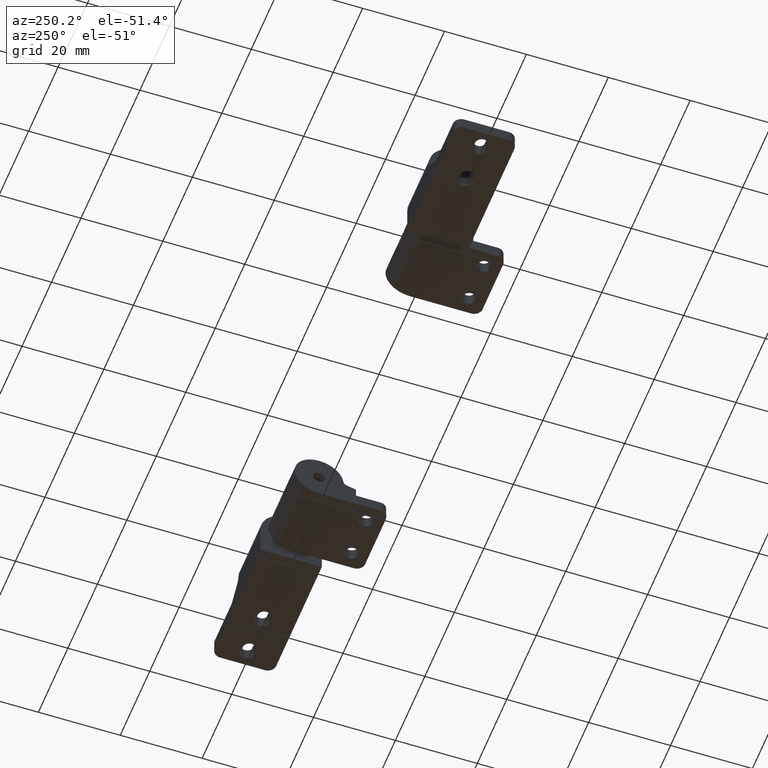
[diagram: clean part render]
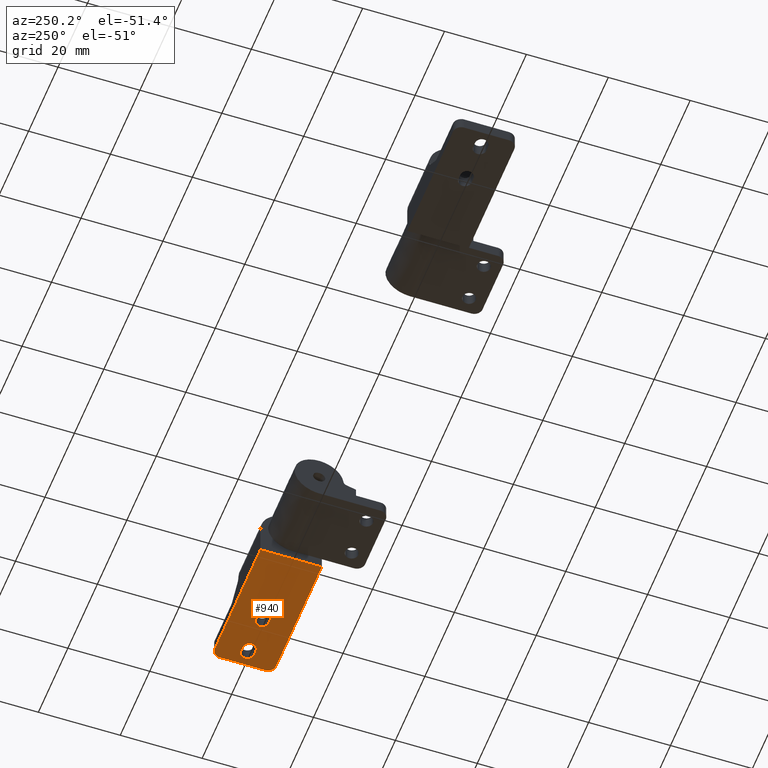
[diagram: same view with one face highlighted and labeled with its STEP entity id]
A machine part, auxiliary view. The second image highlights one B-rep face of the part: STEP entity #940.
In plain terms, the highlighted face is a freeform B-spline surface patch.
Its self-contained STEP definition (entity closure, byte-faithful):
#280=CARTESIAN_POINT('',(132.617673858945010,5.500000000000000,-7.500000000000000));
#281=VERTEX_POINT('',#280);
#287=CARTESIAN_POINT('',(130.617673858945010,7.500000000000000,-7.500000000000000));
#288=VERTEX_POINT('',#287);
#289=CARTESIAN_POINT('',(130.617673858945010,7.500000000000000,-7.500000000000000));
#290=CARTESIAN_POINT('',(132.617673858945010,7.500000000000000,-7.500000000000000));
#291=CARTESIAN_POINT('',(132.617673858945010,5.500000000000000,-7.500000000000000));
#299=(BOUNDED_CURVE()B_SPLINE_CURVE(2,(#289,#290,#291),.UNSPECIFIED.,.F.,.U.)CURVE()GEOMETRIC_REPRESENTATION_ITEM()QUASI_UNIFORM_CURVE()RATIONAL_B_SPLINE_CURVE((1.0,0.707106781186548,1.0))REPRESENTATION_ITEM(''));
#300=EDGE_CURVE('',#288,#281,#299,.T.);
#324=CARTESIAN_POINT('',(132.617673858945010,-5.500000000000000,-7.500000000000000));
#325=VERTEX_POINT('',#324);
#326=CARTESIAN_POINT('',(130.617673858945010,-7.500000000000000,-7.500000000000000));
#327=VERTEX_POINT('',#326);
#328=CARTESIAN_POINT('',(132.617673858945010,-5.500000000000000,-7.500000000000000));
#329=CARTESIAN_POINT('',(132.617673858945010,-7.500000000000000,-7.500000000000000));
#330=CARTESIAN_POINT('',(130.617673858945010,-7.500000000000000,-7.500000000000000));
#338=(BOUNDED_CURVE()B_SPLINE_CURVE(2,(#328,#329,#330),.UNSPECIFIED.,.F.,.U.)CURVE()GEOMETRIC_REPRESENTATION_ITEM()QUASI_UNIFORM_CURVE()RATIONAL_B_SPLINE_CURVE((1.0,0.707106781186548,1.0))REPRESENTATION_ITEM(''));
#339=EDGE_CURVE('',#325,#327,#338,.T.);
#389=CARTESIAN_POINT('',(127.967673858945010,1.600000000000025,-7.500000000000000));
#390=VERTEX_POINT('',#389);
#391=CARTESIAN_POINT('',(127.967673858945010,-1.600000000000025,-7.500000000000000));
#392=VERTEX_POINT('',#391);
#393=CARTESIAN_POINT('',(127.967673858945010,1.600000000000025,-7.500000000000000));
#394=CARTESIAN_POINT('',(127.784475658077600,1.600077991856419,-7.499999999999999));
#395=CARTESIAN_POINT('',(127.365570295843100,1.527493797822270,-7.500000000000010));
#396=CARTESIAN_POINT('',(126.821497044619800,1.183208847150140,-7.499999999999981));
#397=CARTESIAN_POINT('',(126.495480572986910,0.694672137454331,-7.500000000000022));
#398=CARTESIAN_POINT('',(126.362023847115690,0.211658562971916,-7.499999999999978));
#399=CARTESIAN_POINT('',(126.361691202435200,-0.317587870474389,-7.499999999999994));
#400=CARTESIAN_POINT('',(126.583586342500600,-0.893184073160623,-7.500000000000004));
#401=CARTESIAN_POINT('',(127.131086366108210,-1.440723457557452,-7.500000000000002));
#402=CARTESIAN_POINT('',(127.653282479373100,-1.601005780213658,-7.499999999999991));
#403=CARTESIAN_POINT('',(127.967673858945010,-1.600000000000025,-7.500000000000000));
#404=B_SPLINE_CURVE_WITH_KNOTS('',3,(#393,#394,#395,#396,#397,#398,#399,#400,#401,#402,#403),.UNSPECIFIED.,.F.,.U.,(4,1,1,1,1,1,1,1,4),(0.000003890634062,0.549652406642544,1.256775672466239,1.885308163887964,2.278115395318528,2.748929619512599,3.456009322865310,4.084570866846161,5.027052446836393),.UNSPECIFIED.);
#405=EDGE_CURVE('',#390,#392,#404,.T.);
#443=CARTESIAN_POINT('',(129.267673858945610,-1.600000000000025,-7.500000000000000));
#444=VERTEX_POINT('',#443);
#445=CARTESIAN_POINT('',(129.267673858945610,-1.600000000000025,-7.500000000000000));
#446=CARTESIAN_POINT('',(127.967673858945010,-1.600000000000025,-7.500000000000000));
#447=QUASI_UNIFORM_CURVE('',1,(#445,#446),.UNSPECIFIED.,.F.,.U.);
#448=EDGE_CURVE('',#444,#392,#447,.T.);
#484=CARTESIAN_POINT('',(129.267673858945610,1.600000000000025,-7.500000000000000));
#485=VERTEX_POINT('',#484);
#486=CARTESIAN_POINT('',(129.267673858945610,-1.600000000000025,-7.500000000000000));
#487=CARTESIAN_POINT('',(129.450864954884990,-1.600082146609274,-7.500000000000004));
#488=CARTESIAN_POINT('',(129.869783676727000,-1.527491502836834,-7.499999999999984));
#489=CARTESIAN_POINT('',(130.413844978621200,-1.183209039894628,-7.500000000000019));
#490=CARTESIAN_POINT('',(130.739856509914090,-0.694672250002150,-7.499999999999988));
#491=CARTESIAN_POINT('',(130.887555397478990,-0.160752016279495,-7.499999999999999));
#492=CARTESIAN_POINT('',(130.861420322958710,0.372195184289549,-7.500000000000055));
#493=CARTESIAN_POINT('',(130.613771490067510,0.930829807613727,-7.499999999999903));
#494=CARTESIAN_POINT('',(130.104380727357690,1.440824426951611,-7.500000000000091));
#495=CARTESIAN_POINT('',(129.582029714953390,1.600972745320983,-7.499999999999956));
#496=CARTESIAN_POINT('',(129.267673858945610,1.600000000000025,-7.500000000000000));
#497=B_SPLINE_CURVE_WITH_KNOTS('',3,(#486,#487,#488,#489,#490,#491,#492,#493,#494,#495,#496),.UNSPECIFIED.,.F.,.U.,(4,1,1,1,1,1,1,1,4),(0.000003890671533,0.549652406674729,1.256775672490798,1.885308163907280,2.278115395334981,2.906154991427525,3.456009322872747,4.084570866849643,5.027052446836337),.UNSPECIFIED.);
#498=EDGE_CURVE('',#444,#485,#497,.T.);
#531=CARTESIAN_POINT('',(127.967673858945010,1.600000000000025,-7.500000000000000));
#532=CARTESIAN_POINT('',(129.267673858945610,1.600000000000025,-7.500000000000000));
#533=QUASI_UNIFORM_CURVE('',1,(#531,#532),.UNSPECIFIED.,.F.,.U.);
#534=EDGE_CURVE('',#390,#485,#533,.T.);
#564=CARTESIAN_POINT('',(117.967673858945010,1.600000000000025,-7.500000000000000));
#565=VERTEX_POINT('',#564);
#566=CARTESIAN_POINT('',(117.967673858945010,-1.600000000000025,-7.500000000000000));
#567=VERTEX_POINT('',#566);
#568=CARTESIAN_POINT('',(117.967673858945010,1.600000000000025,-7.500000000000000));
#569=CARTESIAN_POINT('',(117.732028437292800,1.600307873718251,-7.500000000000006));
#570=CARTESIAN_POINT('',(117.260963766258300,1.494108542944648,-7.499999999999992));
#571=CARTESIAN_POINT('',(116.753441302632400,1.098086594759537,-7.500000000000010));
#572=CARTESIAN_POINT('',(116.454287557400600,0.598408634959981,-7.499999999999993));
#573=CARTESIAN_POINT('',(116.325969834893700,0.028165944128257,-7.499999999999996));
#574=CARTESIAN_POINT('',(116.436038557035400,-0.606043952855667,-7.500000000000013));
#575=CARTESIAN_POINT('',(116.806745576512700,-1.160912941062467,-7.499999999999989));
#576=CARTESIAN_POINT('',(117.339564152555600,-1.516616475847647,-7.499999999999992));
#577=CARTESIAN_POINT('',(117.758257639241610,-1.600209133473154,-7.500000000000002));
#578=CARTESIAN_POINT('',(117.967673858945010,-1.600000000000025,-7.500000000000000));
#579=B_SPLINE_CURVE_WITH_KNOTS('',3,(#568,#569,#570,#571,#572,#573,#574,#575,#576,#577,#578),.UNSPECIFIED.,.F.,.U.,(4,1,1,1,1,1,1,1,4),(0.000003890621739,0.706909915165301,1.413893309571439,1.885308163881298,2.435093937672693,3.141739324821825,3.770290094890568,4.398840864995382,5.027052446836475),.UNSPECIFIED.);
#580=EDGE_CURVE('',#565,#567,#579,.T.);
#618=CARTESIAN_POINT('',(119.267673858945600,-1.600000000000025,-7.500000000000000));
#619=VERTEX_POINT('',#618);
#620=CARTESIAN_POINT('',(119.267673858945600,-1.600000000000025,-7.500000000000000));
#621=CARTESIAN_POINT('',(117.967673858945010,-1.600000000000025,-7.500000000000000));
#622=QUASI_UNIFORM_CURVE('',1,(#620,#621),.UNSPECIFIED.,.F.,.U.);
#623=EDGE_CURVE('',#619,#567,#622,.T.);
#659=CARTESIAN_POINT('',(119.267673858945600,1.600000000000025,-7.500000000000000));
#660=VERTEX_POINT('',#659);
#661=CARTESIAN_POINT('',(119.267673858945600,-1.600000000000025,-7.500000000000000));
#662=CARTESIAN_POINT('',(119.450850861083400,-1.600085630701024,-7.500000000000000));
#663=CARTESIAN_POINT('',(119.869844716527000,-1.527488986799242,-7.500000000000006));
#664=CARTESIAN_POINT('',(120.368364887106790,-1.211899766181085,-7.499999999999985));
#665=CARTESIAN_POINT('',(120.683522345279000,-0.786378247261924,-7.500000000000022));
#666=CARTESIAN_POINT('',(120.864025308905200,-0.318848237588971,-7.499999999999987));
#667=CARTESIAN_POINT('',(120.887545322501890,0.160730308351093,-7.500000000000036));
#668=CARTESIAN_POINT('',(120.739874927173100,0.694695143065725,-7.499999999999982));
#669=CARTESIAN_POINT('',(120.428627964727100,1.160919484235528,-7.500000000000031));
#670=CARTESIAN_POINT('',(119.895783438857290,1.516615108178511,-7.499999999999980));
#671=CARTESIAN_POINT('',(119.477090476791400,1.600209001952318,-7.500000000000011));
#672=CARTESIAN_POINT('',(119.267673858945600,1.600000000000025,-7.500000000000000));
#673=B_SPLINE_CURVE_WITH_KNOTS('',3,(#661,#662,#663,#664,#665,#666,#667,#668,#669,#670,#671,#672),.UNSPECIFIED.,.F.,.U.,(4,1,1,1,1,1,1,1,1,4),(0.000003890643002,0.549652406650383,1.256775672471314,1.728124888833075,2.120935561168304,2.748929619515921,3.141739324826773,3.770290094893435,4.398840864996456,5.027052446836434),.UNSPECIFIED.);
#674=EDGE_CURVE('',#619,#660,#673,.T.);
#707=CARTESIAN_POINT('',(117.967673858945010,1.600000000000025,-7.500000000000000));
#708=CARTESIAN_POINT('',(119.267673858945600,1.600000000000025,-7.500000000000000));
#709=QUASI_UNIFORM_CURVE('',1,(#707,#708),.UNSPECIFIED.,.F.,.U.);
#710=EDGE_CURVE('',#565,#660,#709,.T.);
#819=CARTESIAN_POINT('',(132.617673858945010,5.500000000000000,-7.500000000000000));
#820=CARTESIAN_POINT('',(132.617673858945010,-5.500000000000000,-7.500000000000000));
#821=QUASI_UNIFORM_CURVE('',1,(#819,#820),.UNSPECIFIED.,.F.,.U.);
#822=EDGE_CURVE('',#281,#325,#821,.T.);
#854=CARTESIAN_POINT('',(99.617673858945068,7.500000000000000,-7.500000000000000));
#855=VERTEX_POINT('',#854);
#861=CARTESIAN_POINT('',(99.617673858945068,-7.500000000000000,-7.500000000000000));
#862=VERTEX_POINT('',#861);
#863=CARTESIAN_POINT('',(99.617673858945068,-7.500000000000000,-7.500000000000000));
#864=CARTESIAN_POINT('',(99.617673858945068,7.500000000000000,-7.500000000000000));
#865=QUASI_UNIFORM_CURVE('',1,(#863,#864),.UNSPECIFIED.,.F.,.U.);
#866=EDGE_CURVE('',#862,#855,#865,.T.);
#887=CARTESIAN_POINT('',(130.617673858945010,7.500000000000000,-7.500000000000000));
#888=CARTESIAN_POINT('',(99.617673858945068,7.500000000000000,-7.500000000000000));
#889=QUASI_UNIFORM_CURVE('',1,(#887,#888),.UNSPECIFIED.,.F.,.U.);
#890=EDGE_CURVE('',#288,#855,#889,.T.);
#911=CARTESIAN_POINT('',(97.969323922905460,-8.249249970927089,-7.500000000000000));
#912=CARTESIAN_POINT('',(134.266024680113590,-8.249249970927089,-7.500000000000000));
#913=CARTESIAN_POINT('',(97.969323922905460,8.249250373258443,-7.500000000000000));
#914=CARTESIAN_POINT('',(134.266024680113590,8.249250373258443,-7.500000000000000));
#915=B_SPLINE_SURFACE_WITH_KNOTS('',1,1,((#911,#913),(#912,#914)),.UNSPECIFIED.,.F.,.F.,.U.,(2,2),(2,2),(0.0,36.296700757208157),(0.0,16.498500344185530),.UNSPECIFIED.);
#916=ORIENTED_EDGE('',*,*,#822,.T.);
#917=ORIENTED_EDGE('',*,*,#339,.T.);
#918=CARTESIAN_POINT('',(130.617673858945010,-7.500000000000000,-7.500000000000000));
#919=CARTESIAN_POINT('',(99.617673858945068,-7.500000000000000,-7.500000000000000));
#920=QUASI_UNIFORM_CURVE('',1,(#918,#919),.UNSPECIFIED.,.F.,.U.);
#921=EDGE_CURVE('',#327,#862,#920,.T.);
#922=ORIENTED_EDGE('',*,*,#921,.T.);
#923=ORIENTED_EDGE('',*,*,#866,.T.);
#924=ORIENTED_EDGE('',*,*,#890,.F.);
#925=ORIENTED_EDGE('',*,*,#300,.T.);
#926=EDGE_LOOP('',(#916,#917,#922,#923,#924,#925));
#927=FACE_OUTER_BOUND('',#926,.T.);
#928=ORIENTED_EDGE('',*,*,#674,.T.);
#929=ORIENTED_EDGE('',*,*,#710,.F.);
#930=ORIENTED_EDGE('',*,*,#580,.T.);
#931=ORIENTED_EDGE('',*,*,#623,.F.);
#932=EDGE_LOOP('',(#928,#929,#930,#931));
#933=FACE_BOUND('',#932,.T.);
#934=ORIENTED_EDGE('',*,*,#498,.T.);
#935=ORIENTED_EDGE('',*,*,#534,.F.);
#936=ORIENTED_EDGE('',*,*,#405,.T.);
#937=ORIENTED_EDGE('',*,*,#448,.F.);
#938=EDGE_LOOP('',(#934,#935,#936,#937));
#939=FACE_BOUND('',#938,.T.);
#940=ADVANCED_FACE('',(#927,#933,#939),#915,.F.);